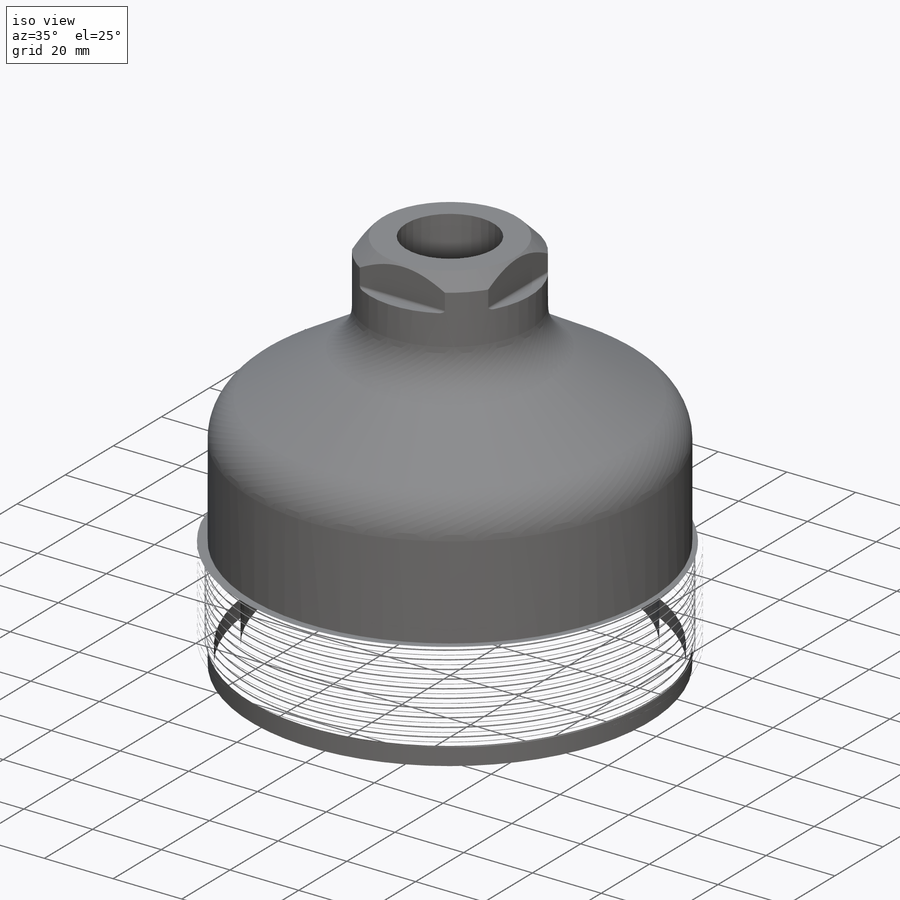
[diagram: iso view]
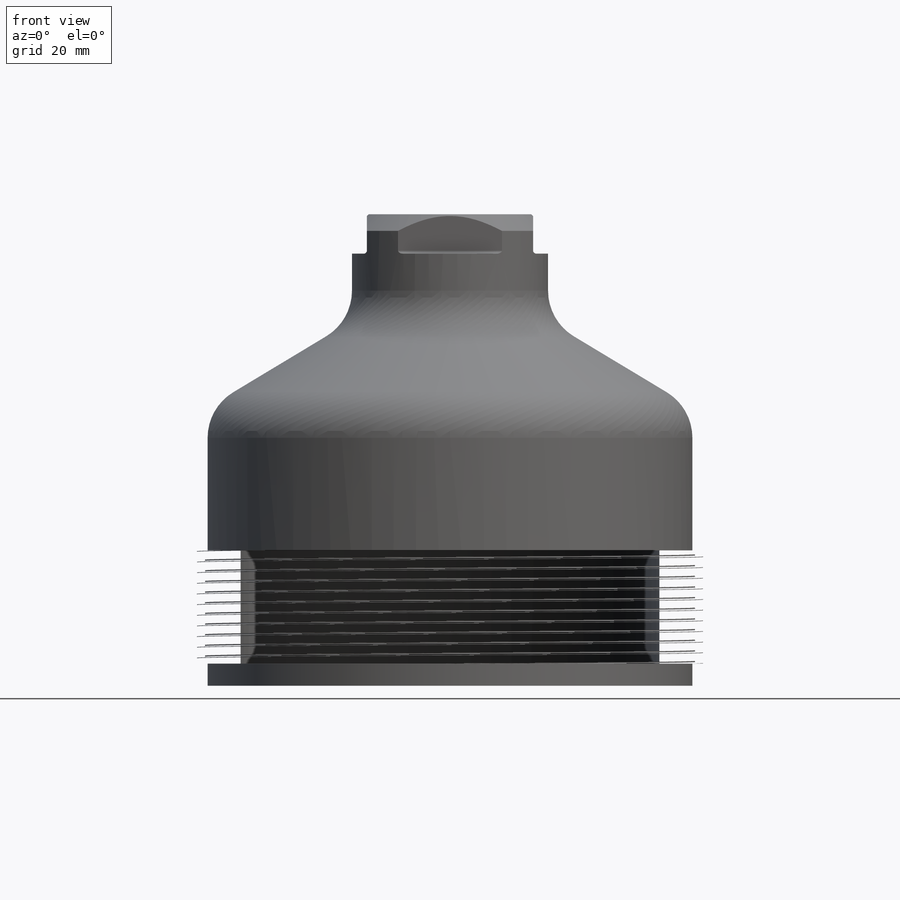
[diagram: front view]
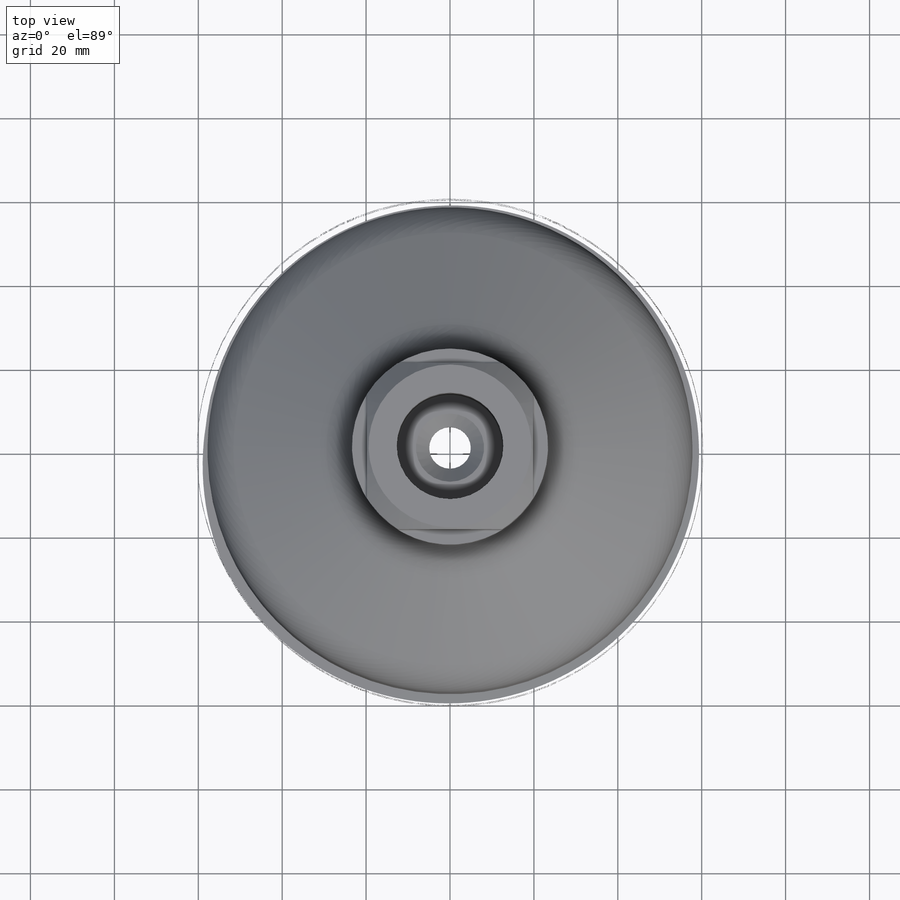
[diagram: top view]
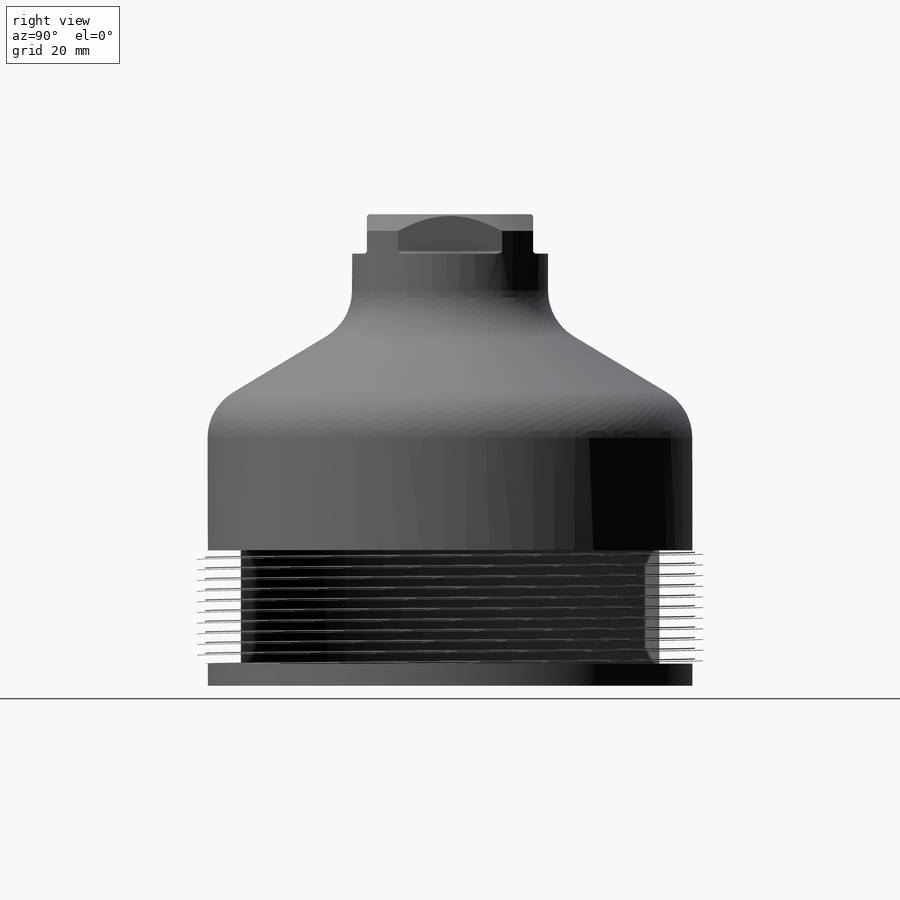
[diagram: right view]
SOLIDWORKS PART (.sldprt)
format: sldprt  version: not decoded by parser v0  size: 1,393,152 bytes
history: native  units: mm
features: sketch x6, fillet x4, material x1, revolve x1, thread x1, cut_extrude x1, pattern_circular x1, hole x1, helix x1, sweep x1 + 1 further entry (+13 scaffold rows collapsed)
feature tree (32):
  scaffold x13  (default folders/planes/origin — collapsed)
  material  "316 SSTL"
  "Origin"  ID=392984584
  sketch  "Sketch1"  dims[c1.D1=66.294mm c1.D2=112.522mm c1.D3=115.57mm c1.D4=99.822mm c1.D5=5.08mm c1.D6=5.2832mm c1.D7=120.65mm c1.D8=26.9748mm c1.D9=41.275mm c1.D10=112.395mm c2.D9=46.736mm c2.D11=25.4mm c2.D12=28.575mm c2.D13=63.119mm c3.D12=7.874mm c3.D13=~29.513149mm c3.D14=25.4mm c3.D15=23.8252mm c3.D16=9.9822mm c3.D18=3.9624mm]
  revolve  "Revolve1"  [1 undecoded]
  thread  "Cosmetic Thread1"  Diameter=23.3172mm  [1 undecoded]
  fillet  "Fillet1"  Radius=6.35mm
  fillet  "Fillet2"  Radius=12.7mm
  sketch  "Sketch4"  dims[D1=19.812mm]
  cut_extrude  "Cut-Extrude1"  Depth=9.398mm
  pattern_circular  "CirPattern1"  Count=4 Angle=360deg
  fillet  "Fillet3"  Radius=0.762mm
  fillet  "Fillet4"  Radius=0.508mm
  hole  "25/64 (0.39063) Diameter Hole1"  Diameter=9.922002mm Depth=88.5698mm
  sketch  "Sketch6"
  sketch  "Sketch5"  dims[hole-wizard template sketch: 54 standard entries collapsed; hole parameters kept: c17.Thru Hole Dia.=~9.922002mm c17.Thru Hole Depth=88.5698mm c17.Near C'Sink Dia.=16.256mm c17.D4=~3.666174mm c17.Near C'Sink Angle=90.0deg]
  sketch  "Sketch11"
  helix  "Helix/Spiral1"  Pitch=31.115mm
  sketch  "Sketch12"  dims[c1.D4=0.1778mm c1.D1=1.524mm c1.D2=2.413mm c1.D3=~1.61749mm c2.D3=83.0deg c2.D4=~2.352876mm c3.D4=~32.931851deg c3.D1=2.54mm c4.D1=45.0deg c4.D4=~2.262233mm]
  sweep  "Cut-Sweep11"
decode coverage: 13 of 17 modeling features carry decoded parameters; 1 rows unclassified (native names shown)
note: ~ marks probable driven/reference dimensions
note: 2 parameter values undecoded
note: suppression state not decoded; provenance and decode notes live in map.json
